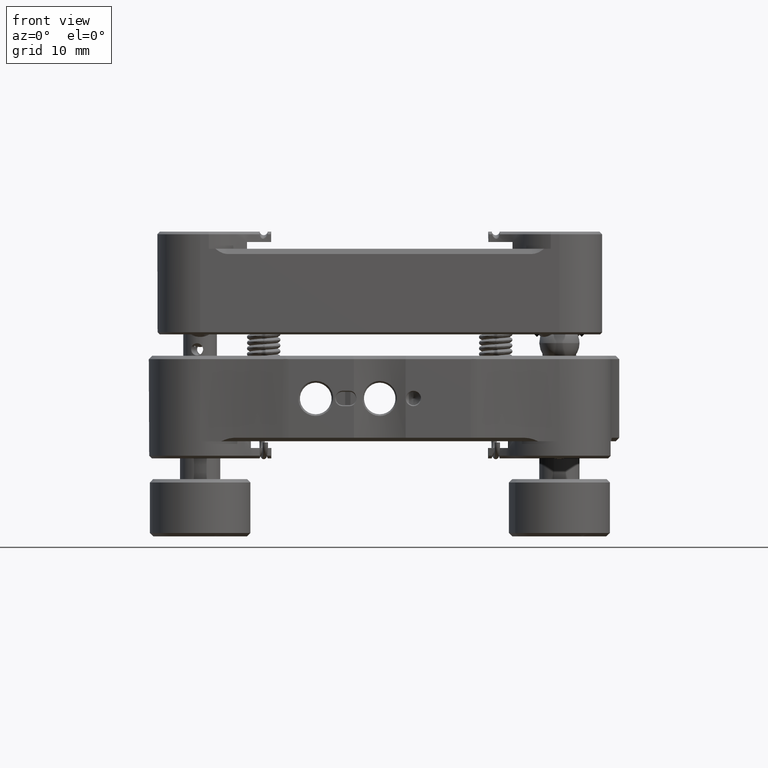
[diagram: clean part render]
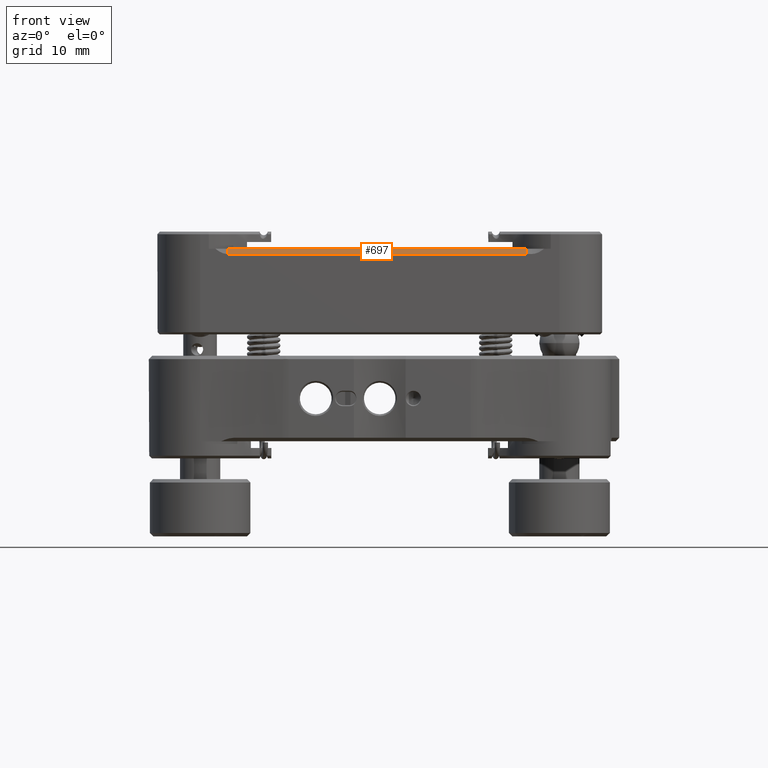
[diagram: same view with one face highlighted and labeled with its STEP entity id]
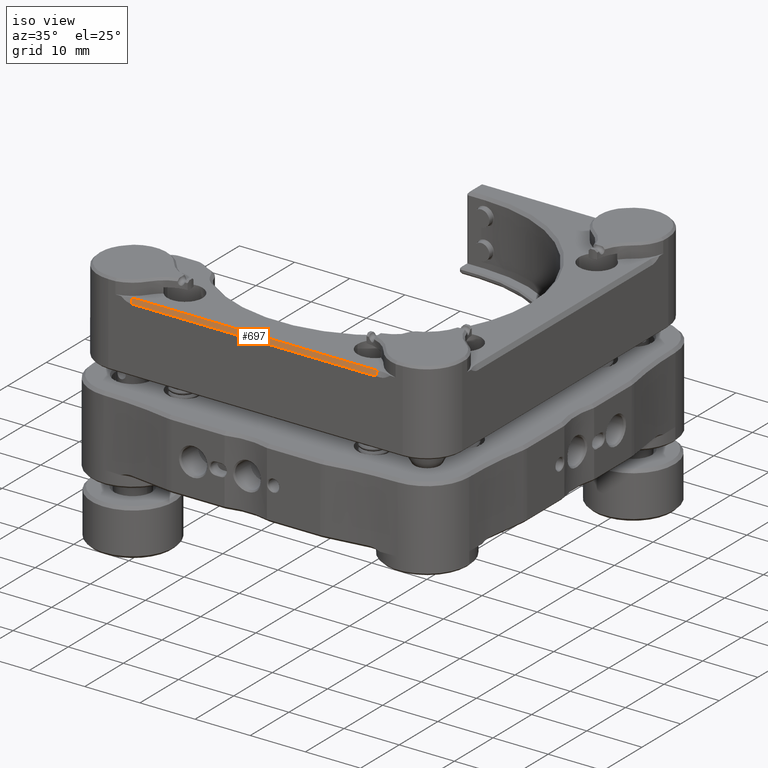
[diagram: same view with one face highlighted and labeled with its STEP entity id]
A machine part, front view. The second image highlights one B-rep face of the part: STEP entity #697.
A second angle (iso view) of the same face is appended — the face is thin or edge-on in the first view.
In plain terms, the highlighted face is a freeform B-spline surface patch.
Its self-contained STEP definition (entity closure, byte-faithful):
#17 = FACE_OUTER_BOUND ( 'NONE', #1992, .T. ) ;
#30 = CARTESIAN_POINT ( 'NONE',  ( 25.37656882689406146, 7.609246495063781701, 29.84846892775564697 ) ) ;
#213 = CARTESIAN_POINT ( 'NONE',  ( 47.98256913111617905, 7.905580317473086538, 29.33520215995490332 ) ) ;
#697 = ADVANCED_FACE ( 'NONE', ( #17 ), #18530, .T. ) ;
#739 = CARTESIAN_POINT ( 'NONE',  ( 18.39706510116372939, 8.053747228677757164, 29.07856877605453150 ) ) ;
#754 = CARTESIAN_POINT ( 'NONE',  ( 3.604313086187506343, 7.577498666341789146, 29.90345794419780390 ) ) ;
#1316 = CARTESIAN_POINT ( 'NONE',  ( 3.604313086187506343, 7.609246495063788807, 29.84846892775564697 ) ) ;
#1317 = CARTESIAN_POINT ( 'NONE',  ( 18.39706510116372939, 7.894997707899101158, 29.35353183210228778 ) ) ;
#1992 = EDGE_LOOP ( 'NONE', ( #9036, #2305, #28756, #3151 ) ) ;
#2305 = ORIENTED_EDGE ( 'NONE', *, *, #18737, .T. ) ;
#3151 = ORIENTED_EDGE ( 'NONE', *, *, #10541, .T. ) ;
#4135 = LINE ( 'NONE', #30, #7596 ) ;
#4220 = B_SPLINE_CURVE_WITH_KNOTS ( 'NONE', 3,
 ( #24451, #213, #15323, #24733 ),
 .UNSPECIFIED., .F., .F.,
 ( 4, 4 ),
 ( 0.000000000000000000, 0.9333376912125956881 ),
 .UNSPECIFIED. ) ;
#4446 = CARTESIAN_POINT ( 'NONE',  ( 3.604313086187506343, 8.053747228677757164, 29.07856877605453150 ) ) ;
#4708 = CARTESIAN_POINT ( 'NONE',  ( 47.98256913111617905, 8.053747228677742953, 29.07856877605453150 ) ) ;
#5713 = CARTESIAN_POINT ( 'NONE',  ( 3.604313086187506343, 8.053747228677757164, 29.07856877605453150 ) ) ;
#6709 = EDGE_CURVE ( 'NONE', #22806, #24594, #4135, .T. ) ;
#7596 = VECTOR ( 'NONE', #8844, 1000.000000000000000 ) ;
#7800 = CARTESIAN_POINT ( 'NONE',  ( 18.39706510116372939, 8.053747228677757164, 29.07856877605453150 ) ) ;
#8008 = B_SPLINE_CURVE_WITH_KNOTS ( 'NONE', 3,
 ( #1316, #25574, #10157, #23791 ),
 .UNSPECIFIED., .F., .F.,
 ( 4, 4 ),
 ( 0.06666230878741147281, 1.000000000000000000 ),
 .UNSPECIFIED. ) ;
#8651 = EDGE_CURVE ( 'NONE', #20278, #16501, #15454, .T. ) ;
#8844 = DIRECTION ( 'NONE',  ( -1.000000000000000000, 2.601759993965966449E-16, -1.055567334785558793E-17 ) ) ;
#9036 = ORIENTED_EDGE ( 'NONE', *, *, #6709, .T. ) ;
#9267 = CARTESIAN_POINT ( 'NONE',  ( 33.18981711613995600, 7.736248187120438047, 29.62849488815004761 ) ) ;
#9417 = CARTESIAN_POINT ( 'NONE',  ( 47.98256913111617905, 7.609246495063774596, 29.84846892775565408 ) ) ;
#9868 = CARTESIAN_POINT ( 'NONE',  ( 18.39706510116372939, 7.736248187120445152, 29.62849488815004761 ) ) ;
#10157 = CARTESIAN_POINT ( 'NONE',  ( 3.604313086187506787, 7.905580317473102525, 29.33520215995490332 ) ) ;
#10289 = CARTESIAN_POINT ( 'NONE',  ( 3.604313086187506343, 7.894997707899101158, 29.35353183210228778 ) ) ;
#10541 = EDGE_CURVE ( 'NONE', #16501, #22806, #4220, .T. ) ;
#11468 = CARTESIAN_POINT ( 'NONE',  ( 47.98256913111617905, 7.577498666341774936, 29.90345794419780390 ) ) ;
#13654 = CARTESIAN_POINT ( 'NONE',  ( 33.18981711613995600, 7.577498666341782041, 29.90345794419780390 ) ) ;
#13738 = CARTESIAN_POINT ( 'NONE',  ( 3.604313086187506343, 7.609246495063788807, 29.84846892775564697 ) ) ;
#14392 = CARTESIAN_POINT ( 'NONE',  ( 3.604313086187506343, 8.053747228677757164, 29.07856877605453150 ) ) ;
#14659 = CARTESIAN_POINT ( 'NONE',  ( 47.98256913111617905, 8.053747228677742953, 29.07856876018479753 ) ) ;
#15323 = CARTESIAN_POINT ( 'NONE',  ( 47.98256913111617905, 7.757413406268430123, 29.59183554385527870 ) ) ;
#15454 = B_SPLINE_CURVE_WITH_KNOTS ( 'NONE', 3,
 ( #5713, #739, #25407, #14659 ),
 .UNSPECIFIED., .F., .F.,
 ( 4, 4 ),
 ( 0.000000000000000000, 1.000000000000000000 ),
 .UNSPECIFIED. ) ;
#15866 = CARTESIAN_POINT ( 'NONE',  ( 47.98256913111617905, 7.736248187120430941, 29.62849488815004761 ) ) ;
#16501 = VERTEX_POINT ( 'NONE', #27355 ) ;
#18220 = CARTESIAN_POINT ( 'NONE',  ( 33.18981711613995600, 7.894997707899101158, 29.35353183210228778 ) ) ;
#18530 = B_SPLINE_SURFACE_WITH_KNOTS ( 'NONE', 3, 3, ( 
 ( #11468, #15866, #24828, #4708 ),
 ( #13654, #9267, #18220, #21439 ),
 ( #27917, #9868, #1317, #7800 ),
 ( #754, #26000, #10289, #14392 ) ),
 .UNSPECIFIED., .F., .F., .F.,
 ( 4, 4 ),
 ( 4, 4 ),
 ( 0.000000000000000000, 1.000000000000000000 ),
 ( 0.000000000000000000, 1.000000000000000000 ),
 .UNSPECIFIED. ) ;
#18737 = EDGE_CURVE ( 'NONE', #24594, #20278, #8008, .T. ) ;
#20278 = VERTEX_POINT ( 'NONE', #4446 ) ;
#21439 = CARTESIAN_POINT ( 'NONE',  ( 33.18981711613995600, 8.053747228677750059, 29.07856877605453150 ) ) ;
#22806 = VERTEX_POINT ( 'NONE', #9417 ) ;
#23791 = CARTESIAN_POINT ( 'NONE',  ( 3.604313086187506343, 8.053747228677757164, 29.07856877605453150 ) ) ;
#24451 = CARTESIAN_POINT ( 'NONE',  ( 47.98256913111617905, 8.053747228677742953, 29.07856876018479753 ) ) ;
#24594 = VERTEX_POINT ( 'NONE', #13738 ) ;
#24733 = CARTESIAN_POINT ( 'NONE',  ( 47.98256913111617905, 7.609246495063774596, 29.84846892775565408 ) ) ;
#24828 = CARTESIAN_POINT ( 'NONE',  ( 47.98256913111617905, 7.894997707899086947, 29.35353183210228778 ) ) ;
#25407 = CARTESIAN_POINT ( 'NONE',  ( 33.18981711613995600, 8.053747228677750059, 29.07856877605453150 ) ) ;
#25574 = CARTESIAN_POINT ( 'NONE',  ( 3.604313086187507231, 7.757413406268446998, 29.59183554385528225 ) ) ;
#26000 = CARTESIAN_POINT ( 'NONE',  ( 3.604313086187506343, 7.736248187120445152, 29.62849488815004761 ) ) ;
#27355 = CARTESIAN_POINT ( 'NONE',  ( 47.98256913111617905, 8.053747228677742953, 29.07856876018479753 ) ) ;
#27917 = CARTESIAN_POINT ( 'NONE',  ( 18.39706510116372939, 7.577498666341789146, 29.90345794419780390 ) ) ;
#28756 = ORIENTED_EDGE ( 'NONE', *, *, #8651, .T. ) ;